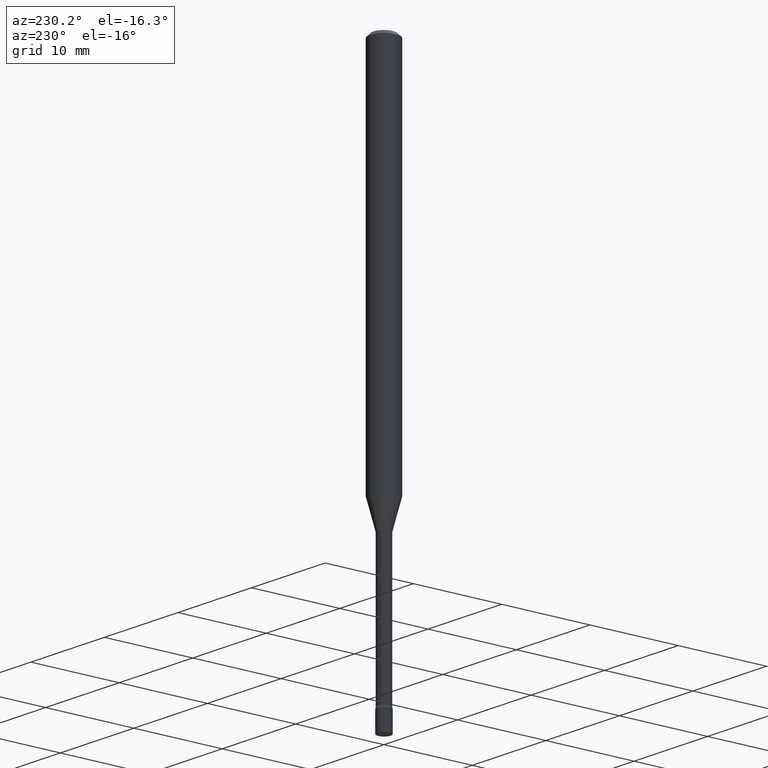
[diagram: clean part render]
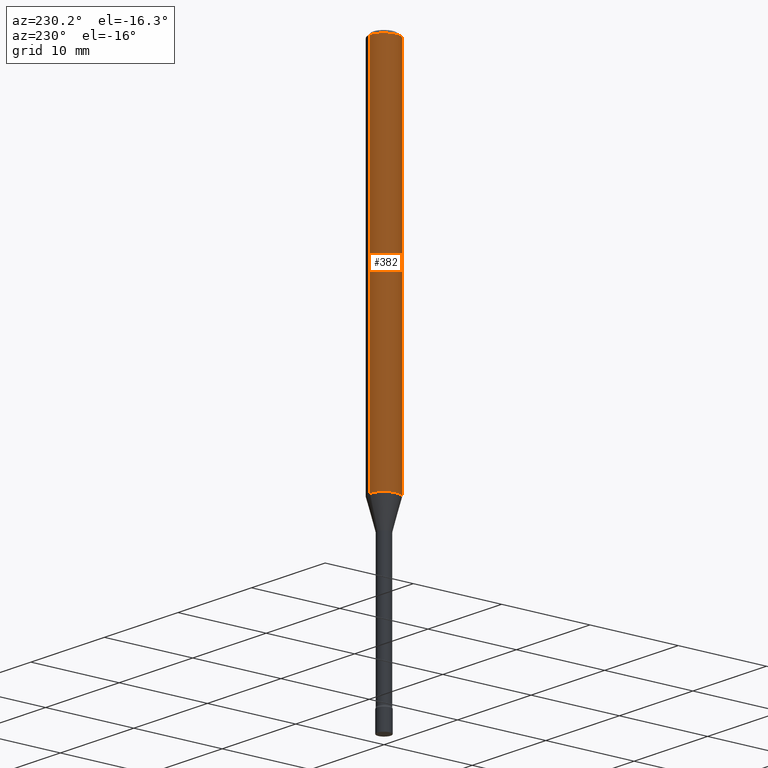
[diagram: same view with one face highlighted and labeled with its STEP entity id]
A machine part, auxiliary view. The second image highlights one B-rep face of the part: STEP entity #382.
In plain terms, the highlighted cylindrical surface (edge-blend (fillet) strip) has radius 1.5875 mm, axis along (-0, 0, 1).
Its self-contained STEP definition (entity closure, byte-faithful):
#1 = FACE_OUTER_BOUND ( 'NONE', #424, .T. ) ;
#5 = CARTESIAN_POINT ( 'NONE',  ( 4.440892098501027495E-16, 0.06249999999999421296, -1.651990657300388188 ) ) ;
#16 = CARTESIAN_POINT ( 'NONE',  ( 0.000000000000000000, 0.000000000000000000, 0.000000000000000000 ) ) ;
#28 = EDGE_CURVE ( 'NONE', #334, #418, #257, .T. ) ;
#65 = DIRECTION ( 'NONE',  ( -2.445500294341348638E-29, 3.491436246011255464E-15, 1.000000000000000000 ) ) ;
#73 = VECTOR ( 'NONE', #171, 39.37007874015748143 ) ;
#80 = EDGE_CURVE ( 'NONE', #466, #140, #351, .T. ) ;
#81 = DIRECTION ( 'NONE',  ( -6.982962677686265922E-15, -1.000000000000000000, 3.483106191921935554E-15 ) ) ;
#122 = DIRECTION ( 'NONE',  ( -2.445500294341348918E-29, 3.491436246011255464E-15, 1.000000000000000000 ) ) ;
#140 = VERTEX_POINT ( 'NONE', #276 ) ;
#171 = DIRECTION ( 'NONE',  ( -2.445500294341348918E-29, 3.491436246011255464E-15, 1.000000000000000000 ) ) ;
#174 = CARTESIAN_POINT ( 'NONE',  ( -4.364351673553912750E-16, -0.06250000000000005551, -0.01499999999999981209 ) ) ;
#219 = CARTESIAN_POINT ( 'NONE',  ( 4.440892098501032425E-16, 0.06249999999999995143, -0.01500000000000024751 ) ) ;
#220 = ORIENTED_EDGE ( 'NONE', *, *, #28, .F. ) ;
#240 = AXIS2_PLACEMENT_3D ( 'NONE', #16, #65, #483 ) ;
#243 = CARTESIAN_POINT ( 'NONE',  ( 4.039943638677256498E-29, -5.767820058970533268E-15, -1.651990657300387966 ) ) ;
#257 = CIRCLE ( 'NONE', #313, 0.06250000000000000000 ) ;
#265 = LINE ( 'NONE', #421, #274 ) ;
#274 = VECTOR ( 'NONE', #122, 39.37007874015748143 ) ;
#276 = CARTESIAN_POINT ( 'NONE',  ( -4.364351673553514375E-16, -0.06250000000000580092, -1.651990657300387744 ) ) ;
#280 = DIRECTION ( 'NONE',  ( -2.445500294341348638E-29, 3.491436246011255464E-15, 1.000000000000000000 ) ) ;
#297 = AXIS2_PLACEMENT_3D ( 'NONE', #243, #509, #432 ) ;
#313 = AXIS2_PLACEMENT_3D ( 'NONE', #506, #280, #81 ) ;
#334 = VERTEX_POINT ( 'NONE', #219 ) ;
#340 = ORIENTED_EDGE ( 'NONE', *, *, #80, .T. ) ;
#351 = CIRCLE ( 'NONE', #297, 0.06250000000000000000 ) ;
#365 = LINE ( 'NONE', #375, #73 ) ;
#371 = ORIENTED_EDGE ( 'NONE', *, *, #520, .T. ) ;
#375 = CARTESIAN_POINT ( 'NONE',  ( 4.440892098500625669E-16, 0.06250000000000000000, -2.182147653757034665E-16 ) ) ;
#382 = ADVANCED_FACE ( 'NONE', ( #1 ), #404, .T. ) ;
#404 = CYLINDRICAL_SURFACE ( 'NONE', #240, 0.06250000000000000000 ) ;
#415 = ORIENTED_EDGE ( 'NONE', *, *, #457, .F. ) ;
#418 = VERTEX_POINT ( 'NONE', #174 ) ;
#421 = CARTESIAN_POINT ( 'NONE',  ( -4.364351673553916201E-16, -0.06250000000000000000, 2.182147653757034665E-16 ) ) ;
#424 = EDGE_LOOP ( 'NONE', ( #415, #340, #371, #220 ) ) ;
#432 = DIRECTION ( 'NONE',  ( -6.982962677686265922E-15, -1.000000000000000000, 4.370956789862821150E-15 ) ) ;
#457 = EDGE_CURVE ( 'NONE', #466, #334, #365, .T. ) ;
#466 = VERTEX_POINT ( 'NONE', #5 ) ;
#483 = DIRECTION ( 'NONE',  ( -6.982962677686265922E-15, -1.000000000000000000, 3.491436246011255464E-15 ) ) ;
#506 = CARTESIAN_POINT ( 'NONE',  ( 3.668250441512030208E-31, -5.237154369016894363E-17, -0.01500000000000003067 ) ) ;
#509 = DIRECTION ( 'NONE',  ( -2.445500294341348638E-29, 3.491436246011255464E-15, 1.000000000000000000 ) ) ;
#520 = EDGE_CURVE ( 'NONE', #140, #418, #265, .T. ) ;